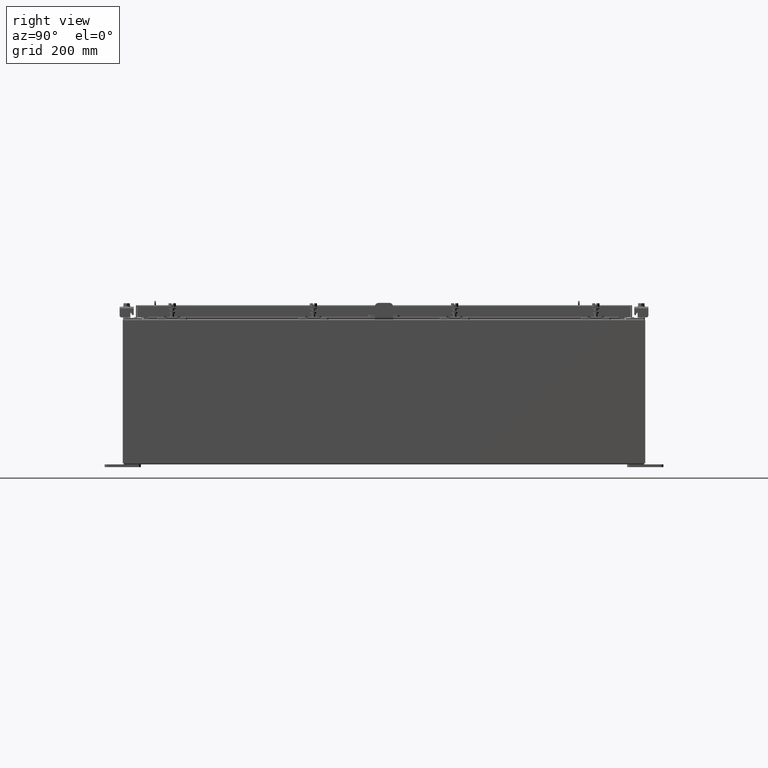
[diagram: clean part render]
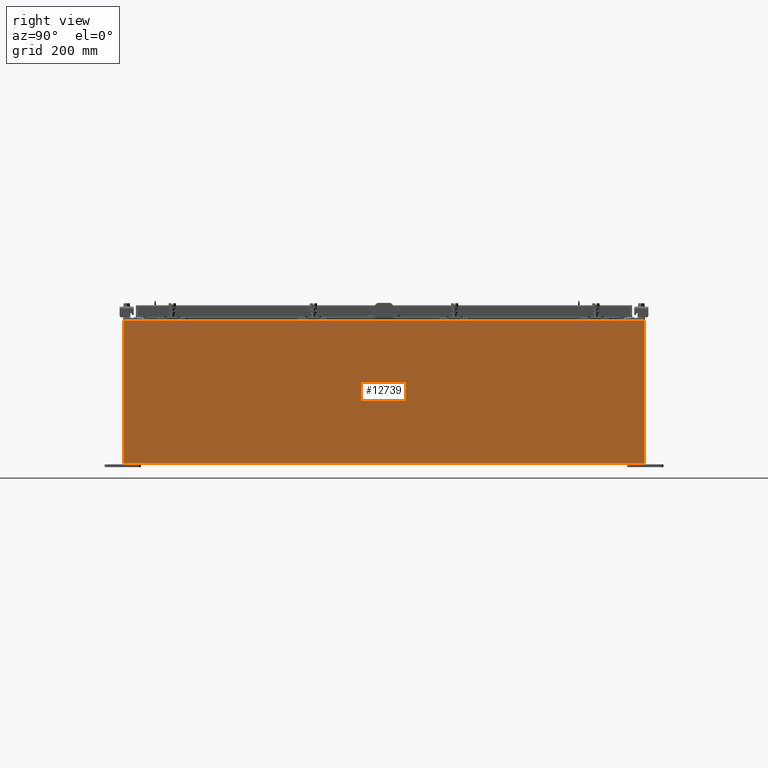
[diagram: same view with one face highlighted and labeled with its STEP entity id]
A machine part, right view. The second image highlights one B-rep face of the part: STEP entity #12739.
In plain terms, the highlighted planar face has unit normal (-1, 0, 0).
Its self-contained STEP definition (entity closure, byte-faithful):
#306 = VECTOR ( 'NONE', #12116, 39.37007874015748100 ) ;
#885 = LINE ( 'NONE', #16058, #306 ) ;
#1131 = DIRECTION ( 'NONE',  ( 2.147696684564447600E-031, -1.000000000000000000, 6.096072018129156600E-017 ) ) ;
#3579 = EDGE_CURVE ( 'NONE', #5936, #6368, #18893, .T. ) ;
#4281 = VECTOR ( 'NONE', #21828, 39.37007874015748100 ) ;
#4674 = CARTESIAN_POINT ( 'NONE',  ( 14.99999999999999800, -17.92530000000000000, 0.01300000000000022300 ) ) ;
#5135 = EDGE_CURVE ( 'NONE', #6208, #7624, #9685, .T. ) ;
#5936 = VERTEX_POINT ( 'NONE', #12996 ) ;
#6208 = VERTEX_POINT ( 'NONE', #19428 ) ;
#6368 = VERTEX_POINT ( 'NONE', #4674 ) ;
#6399 = EDGE_CURVE ( 'NONE', #7624, #6368, #14975, .T. ) ;
#6694 = CARTESIAN_POINT ( 'NONE',  ( 14.99999999999999800, -17.92530000000000000, -5.310705656892488900E-014 ) ) ;
#7470 = ORIENTED_EDGE ( 'NONE', *, *, #3579, .F. ) ;
#7624 = VERTEX_POINT ( 'NONE', #12754 ) ;
#7781 = FACE_OUTER_BOUND ( 'NONE', #22825, .T. ) ;
#8226 = VECTOR ( 'NONE', #1131, 39.37007874015748100 ) ;
#9685 = LINE ( 'NONE', #11107, #23586 ) ;
#10336 = EDGE_CURVE ( 'NONE', #5936, #6208, #885, .T. ) ;
#11021 = DIRECTION ( 'NONE',  ( -1.000000000000000000, 0.0000000000000000000, 3.523082860860887800E-015 ) ) ;
#11107 = CARTESIAN_POINT ( 'NONE',  ( 15.00000000000003400, 17.92530000000000000, 9.837599999999994800 ) ) ;
#12116 = DIRECTION ( 'NONE',  ( 3.523082860860888200E-015, -2.201926788038055100E-016, 1.000000000000000000 ) ) ;
#12739 = ADVANCED_FACE ( 'NONE', ( #7781 ), #18567, .F. ) ;
#12754 = CARTESIAN_POINT ( 'NONE',  ( 15.00000000000003400, -17.92530000000000000, 9.837600000000001900 ) ) ;
#12996 = CARTESIAN_POINT ( 'NONE',  ( 14.99999999999999800, 17.92530000000000000, 0.01299999999999766100 ) ) ;
#14774 = CARTESIAN_POINT ( 'NONE',  ( 14.99999999999999800, 0.0000000000000000000, -5.310705656892488900E-014 ) ) ;
#14975 = LINE ( 'NONE', #6694, #4281 ) ;
#15828 = ORIENTED_EDGE ( 'NONE', *, *, #10336, .T. ) ;
#16058 = CARTESIAN_POINT ( 'NONE',  ( 14.99999999999999800, 17.92530000000000000, -4.916003674356303100E-014 ) ) ;
#18039 = CARTESIAN_POINT ( 'NONE',  ( 14.99999999999999800, -17.92530000000000000, 0.01299999999999984700 ) ) ;
#18567 = PLANE ( 'NONE',  #23360 ) ;
#18893 = LINE ( 'NONE', #18039, #8226 ) ;
#19428 = CARTESIAN_POINT ( 'NONE',  ( 15.00000000000003400, 17.92530000000000000, 9.837599999999994800 ) ) ;
#20395 = ORIENTED_EDGE ( 'NONE', *, *, #5135, .T. ) ;
#20458 = ORIENTED_EDGE ( 'NONE', *, *, #6399, .T. ) ;
#21828 = DIRECTION ( 'NONE',  ( -3.523082860860888200E-015, 0.0000000000000000000, -1.000000000000000000 ) ) ;
#22468 = DIRECTION ( 'NONE',  ( -0.0000000000000000000, -1.000000000000000000, -0.0000000000000000000 ) ) ;
#22825 = EDGE_LOOP ( 'NONE', ( #20395, #20458, #7470, #15828 ) ) ;
#23360 = AXIS2_PLACEMENT_3D ( 'NONE', #14774, #11021, #24239 ) ;
#23586 = VECTOR ( 'NONE', #22468, 39.37007874015748100 ) ;
#24239 = DIRECTION ( 'NONE',  ( 3.523082860860887800E-015, 0.0000000000000000000, 1.000000000000000000 ) ) ;